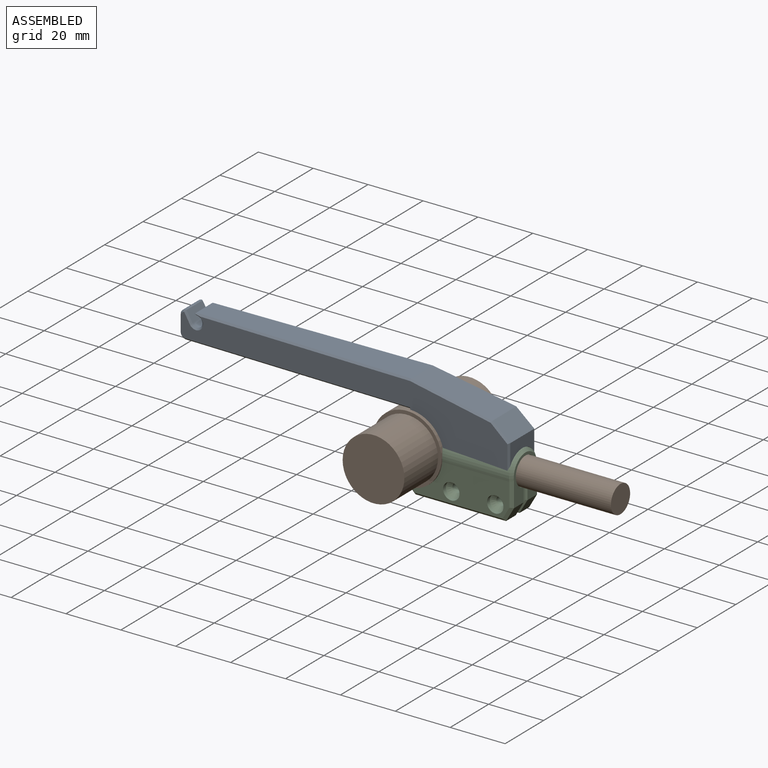
[diagram: assembled view]
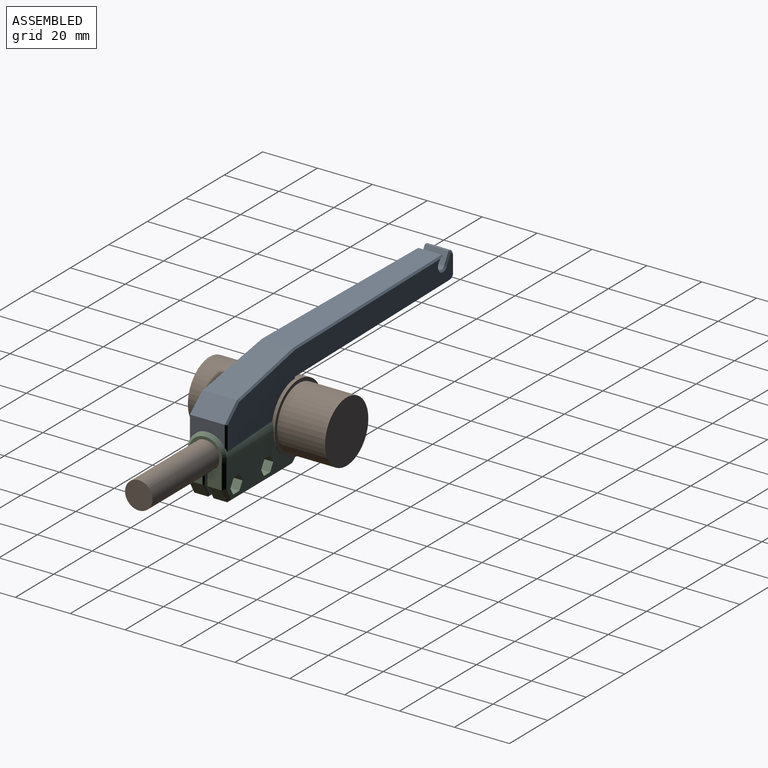
[diagram: assembled view, second angle]
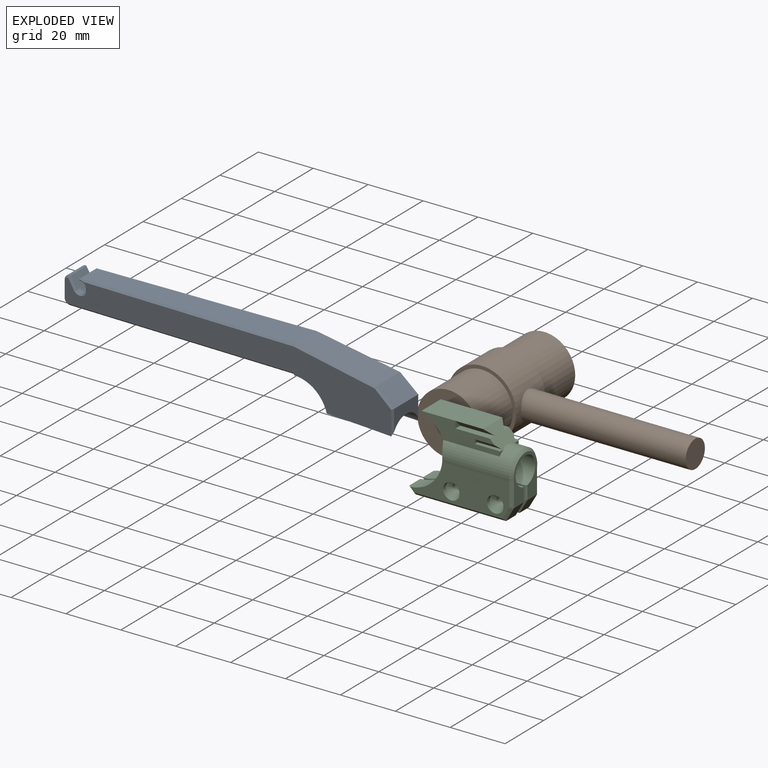
[diagram: exploded view]
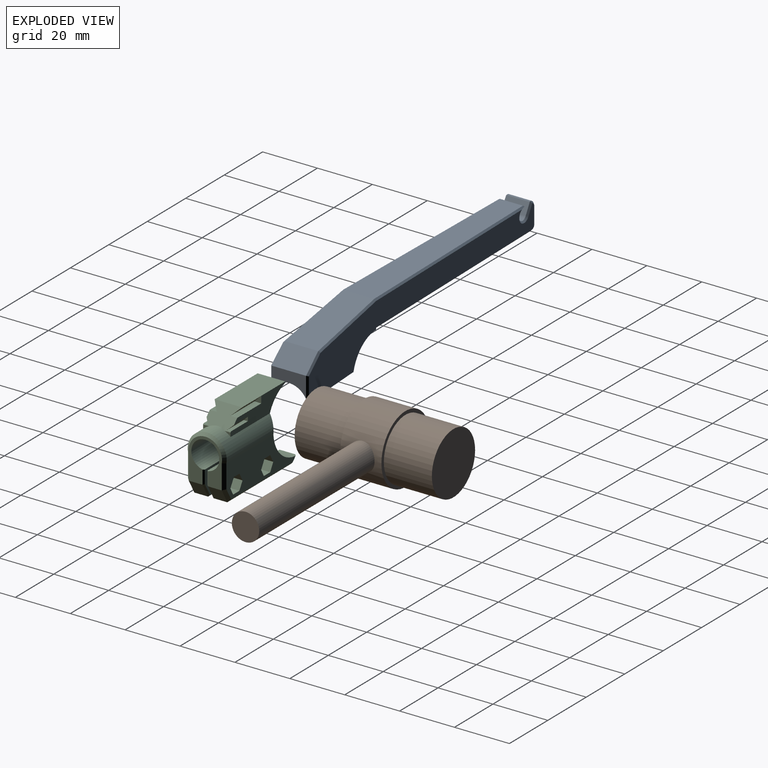
[diagram: exploded view, second angle]
ASSEMBLY  parts=3 mates=2
PART A: 67 faces, bbox 122.7x21.6x14.9 mm
  f0: plane 109.09x11.28mm, normal (0,1,0), area 989.1mm2, adj f6,f12,f17,f18,f26,f41,f52,f58
  f1: plane 2.22x1.52mm, normal (-1,0,0), area 1.5mm2, adj f6,f19,f58
  f2: plane 8.8x1.5mm, normal (0,1,0), area 13.2mm2, adj f3,f6,f55,f58
  f3: plane 8.8x1.5mm, normal (0,-0.71,0.71), area 17.1mm2, adj f2,f6,f55,f58
  f4: plane 8.8x1.5mm, normal (0,-0.71,-0.71), area 17.1mm2, adj f5,f12,f56,f58
  f5: plane 8.8x1.5mm, normal (0,1,0), area 13.2mm2, adj f4,f12,f56,f58
  f6: plane 32.09x7.52mm, normal (0,0,1), area 121.8mm2, adj f0,f1,f2,f3,f8,f9,f18,f19
  f7: plane 12.54x6.5mm, normal (0.66,-0.75,0), area 107mm2, adj f13,f30,f31,f32,f42,f43
  f8: plane 12.59x2.5mm, normal (0,1,0), area 31.5mm2, adj f6,f9,f21,f58
  f9: plane 12.59x2.5mm, normal (0,-0.71,0.71), area 40.1mm2, adj f6,f8,f21,f58
  f10: plane 12.59x2.5mm, normal (0,-0.71,-0.71), area 40.1mm2, adj f11,f12,f20,f58
  f11: plane 12.59x2.5mm, normal (0,1,0), area 31.5mm2, adj f10,f12,f20,f58
  f12: plane 32.09x7.52mm, normal (0,0,-1), area 121.8mm2, adj f0,f4,f5,f10,f11,f17,f19,f20
  f13: plane 12.53x7.65mm, normal (1,0,0), area 63.4mm2, adj f7,f19,f31,f42
  f14: plane 120.36x19.82mm, normal (-0.02,0,-1), area 1173.9mm2, adj f18,f19,f23,f42,f43,f44,f46,f47
  f15: plane 79.1x11.28mm, normal (0,-1,0), area 782.7mm2, adj f30,f33,f34,f44,f46,f65
  f16: plane 120.36x19.82mm, normal (-0.02,0,1), area 1174mm2, adj f17,f19,f22,f31,f32,f33,f34,f36
  f17: plane 1.14x0.6mm, normal (-1,0,0), area 0.2mm2, adj f0,f12,f16,f41,f54
  f18: plane 1.14x0.6mm, normal (-1,0,0), area 0.2mm2, adj f0,f6,f14,f52,f53
  f19: cylinder r=7.2mm len=25.08mm, axis (-1,0,0), area 190.3mm2, adj f1,f6,f12,f13,f14,f16,f22,f23
  f20: plane 2.5x2.5mm, normal (-1,0,0), area 3.1mm2, adj f10,f11,f12
  f21: plane 2.5x2.5mm, normal (-1,0,0), area 3.1mm2, adj f6,f8,f9
  f22: cylinder r=12.5mm len=11.98mm, axis (0,0,-1), area 18.9mm2, adj f12,f16,f19,f54
  f23: cylinder r=12.5mm len=11.98mm, axis (0,0,-1), area 18.9mm2, adj f6,f14,f19,f53
  f24: plane 8.33x5.9mm, normal (-1,0,0), area 49.1mm2, adj f25,f26,f39,f50
  f25: cylinder r=2mm len=8.37mm, axis (0,0,1), area 23.6mm2, adj f24,f38,f49,f66
  f26: cylinder r=2mm len=8.38mm, axis (0,0,-1), area 26.2mm2, adj f0,f24,f40,f51
  f27: plane 8.54x0.66mm, normal (-0.23,0.97,0), area 5.8mm2, adj f29,f35,f45,f64
  f28: plane 8.44x3.66mm, normal (0.86,-0.5,0), area 35.6mm2, adj f29,f37,f48,f66
  f29: cylinder r=2mm len=8.54mm, axis (0,0,-1), area 67.1mm2, adj f27,f28,f36,f47
  f30: plane 30x12.32mm, normal (0.19,-0.98,0), area 360.1mm2, adj f7,f15,f32,f33,f43,f44
  f31: plane 9.1x0.68mm, normal (0.7,0,0.71), area 7mm2, adj f7,f13,f16,f19,f32
  f32: plane 6.78x5.93mm, normal (0.45,-0.54,0.71), area 7.2mm2, adj f7,f16,f30,f31,f33
  f33: plane 30.06x6.21mm, normal (0.12,-0.7,0.71), area 25.9mm2, adj f15,f16,f30,f32,f34
  f34: plane 79.69x2.14mm, normal (-0.01,-0.71,0.71), area 67.1mm2, adj f15,f16,f33,f35,f36,f64,f65
  f35: plane 1.11x0.6mm, normal (-0.18,0.69,0.71), area 0.6mm2, adj f27,f34,f36,f64
  f36: bspline ~5.13x4.85mm, area 7.6mm2, adj f16,f29,f34,f35,f37
  f37: plane 4.19x2.65mm, normal (0.6,-0.36,0.71), area 3.7mm2, adj f16,f28,f36,f38,f66
  f38: bspline ~2.18x2.04mm, area 2.1mm2, adj f16,f25,f37,f39,f66
  f39: plane 5.9x0.6mm, normal (-0.71,0,0.7), area 5mm2, adj f16,f24,f38,f40
  f40: bspline ~2x2mm, area 2.3mm2, adj f16,f26,f39,f41
  f41: plane 83.01x2.05mm, normal (-0.01,0.71,0.71), area 70.4mm2, adj f0,f16,f17,f40
  f42: plane 9.1x0.68mm, normal (0.7,0,-0.71), area 7mm2, adj f7,f13,f14,f19,f43
  f43: plane 6.78x5.93mm, normal (0.45,-0.54,-0.71), area 7.2mm2, adj f7,f14,f30,f42,f44
  f44: plane 30.06x6.21mm, normal (0.12,-0.7,-0.71), area 25.9mm2, adj f14,f15,f30,f43,f46
  f45: plane 1.11x0.6mm, normal (-0.18,0.69,-0.71), area 0.6mm2, adj f27,f46,f47,f64
  f46: plane 79.69x2.14mm, normal (-0.01,-0.71,-0.71), area 67.1mm2, adj f14,f15,f44,f45,f47,f64,f65
  f47: bspline ~5.13x4.85mm, area 7.6mm2, adj f14,f29,f45,f46,f48
  f48: plane 4.19x2.65mm, normal (0.6,-0.36,-0.71), area 3.7mm2, adj f14,f28,f47,f49,f66
  f49: bspline ~2.18x2.04mm, area 2.1mm2, adj f14,f25,f48,f50,f66
  f50: plane 5.9x0.6mm, normal (-0.71,0,-0.7), area 5mm2, adj f14,f24,f49,f51
  f51: bspline ~2x2mm, area 2.3mm2, adj f14,f26,f50,f52
  f52: plane 83.01x2.05mm, normal (-0.01,0.71,-0.71), area 70.4mm2, adj f0,f14,f18,f51
  f53: plane 1.14x0.1mm, normal (-0.71,0.7,0), area 0.2mm2, adj f6,f14,f18,f23
  f54: plane 1.14x0.1mm, normal (-0.71,0.7,0), area 0.2mm2, adj f12,f16,f17,f22
  f55: plane 1.5x1.5mm, normal (-1,0,0), area 1.1mm2, adj f2,f3,f6
  f56: plane 1.5x1.5mm, normal (-1,0,0), area 1.1mm2, adj f4,f5,f12
  f57: plane 2.22x1.52mm, normal (-1,0,0), area 1.5mm2, adj f12,f19,f58
  f58: plane 11.4x7.2mm, normal (-0.71,0.71,0), area 71.2mm2, adj f0,f1,f2,f3,f4,f5,f6,f8
  f59: plane 28.5x2mm, normal (0,0,-1), area 57mm2, adj f0,f60,f62,f63
  f60: cylinder r=1.5mm len=3mm, axis (0,1,0), area 9.4mm2, adj f0,f59,f61,f63
  f61: plane 28.5x2mm, normal (0,0,1), area 57mm2, adj f0,f60,f62,f63
  f62: cylinder r=1.5mm len=3mm, axis (0,1,0), area 9.4mm2, adj f0,f59,f61,f63
  f63: plane 31.5x3mm, normal (0,1,0), area 92.6mm2, adj f59,f60,f61,f62
  f64: cylinder r=0.45mm len=9.2mm, axis (0,0,1), area 5.3mm2, adj f27,f34,f35,f45,f46,f65
  f65: cylinder r=0.45mm len=9.2mm, axis (0,0,1), area 5.4mm2, adj f15,f34,f46,f64
  f66: cylinder r=0.45mm len=8.51mm, axis (0,0,1), area 4.6mm2, adj f25,f28,f37,f38,f48,f49
PART B: 9 faces, bbox 85x25x50 mm
  f0: cylinder r=12.5mm len=25mm, axis (0,0,-1), area 1097.8mm2, adj f1,f2,f7
  f1: plane 25x25mm, normal (0,0,1), area 93.3mm2, adj f0,f5
  f2: plane 25x25mm, normal (0,0,-1), area 93.3mm2, adj f0,f4
  f3: plane 22.5x22.5mm, normal (0,0,-1), area 397.6mm2, adj f4
  f4: cylinder r=11.25mm len=22.5mm, axis (0,0,-1), area 1237mm2, adj f2,f3
  f5: cylinder r=11.25mm len=22.5mm, axis (0,0,-1), area 1237mm2, adj f1,f6
  f6: plane 22.5x22.5mm, normal (0,0,1), area 397.6mm2, adj f5
  f7: cylinder r=5mm len=61.04mm, axis (-1,0,0), area 1901.2mm2, adj f0,f8
  f8: plane 10x10mm, normal (1,0,0), area 78.5mm2, adj f7
PART C: 76 faces, bbox 37.9x27.5x14.2 mm
  f0: plane 2.14x1.46mm, normal (1,0,0), area 1.4mm2, adj f11,f24,f66
  f1: plane 22.39x10mm, normal (0,-1,0), area 223.9mm2, adj f4,f5,f11,f21,f32,f66
  f2: plane 16.1x12.2mm, normal (1,0,0), area 87mm2, adj f18,f23,f27,f56,f57,f61,f62,f67
  f3: plane 12.5x2.5mm, normal (0,-1,0), area 31.2mm2, adj f4,f11,f30,f66
  f4: plane 12.5x2.5mm, normal (0,0.71,0.71), area 39.8mm2, adj f1,f3,f30,f66
  f5: plane 12.5x2.5mm, normal (0,0.71,-0.71), area 39.8mm2, adj f1,f6,f31,f66
  f6: plane 12.5x2.5mm, normal (0,-1,0), area 31.3mm2, adj f5,f21,f31,f66
  f7: plane 8.7x1.5mm, normal (0,0.71,-0.71), area 16.9mm2, adj f8,f21,f63,f66
  f8: plane 8.7x1.5mm, normal (0,-1,0), area 13.1mm2, adj f7,f21,f63,f66
  f9: plane 8.7x1.5mm, normal (0,0.71,0.71), area 16.9mm2, adj f10,f11,f64,f66
  f10: plane 8.7x1.5mm, normal (0,-1,0), area 13.1mm2, adj f9,f11,f64,f66
  f11: plane 28.39x7.46mm, normal (0,0,1), area 117.8mm2, adj f0,f1,f3,f9,f10,f20,f24,f30
  f12: cylinder r=1.6mm len=3.6mm, axis (0,0,-1), area 36.2mm2, adj f33,f52
  f13: cylinder r=1.6mm len=3.6mm, axis (0,0,-1), area 36.2mm2, adj f33,f51
  f14: cylinder r=1.6mm len=3.25mm, axis (0,0,-1), area 32.7mm2, adj f34,f48
  f15: cylinder r=1.6mm len=3.25mm, axis (0,0,-1), area 32.7mm2, adj f34,f41
  f16: plane 33x5mm, normal (0,1,0), area 165mm2, adj f27,f29,f59,f74
  f17: plane 5.71x0.5mm, normal (-1,0,0), area 2.7mm2, adj f19,f20,f53,f71
  f18: plane 5x5mm, normal (0.87,0.5,0), area 28.9mm2, adj f2,f28,f55,f69
  f19: plane 5x2mm, normal (-0.71,0.71,0), area 14.1mm2, adj f17,f28,f53,f71
  f20: cylinder r=12.5mm len=24.5mm, axis (0,0,-1), area 352.2mm2, adj f11,f17,f21,f22,f23,f24,f25,f26
  f21: plane 28.39x7.46mm, normal (0,0,-1), area 117.8mm2, adj f1,f6,f7,f8,f20,f24,f31,f32
  f22: plane 5.71x0.5mm, normal (-1,0,0), area 2.7mm2, adj f20,f29,f58,f75
  f23: cylinder r=5.1mm len=26.48mm, axis (1,0,0), area 804mm2, adj f2,f20,f33,f34,f68,f72
  f24: cylinder r=7.1mm len=25.45mm, axis (1,0,0), area 393.7mm2, adj f0,f11,f20,f21,f25,f26,f57,f62
  f25: plane 36x12.81mm, normal (0,0,-1), area 300.4mm2, adj f20,f24,f49,f50,f58,f59,f60,f61
  f26: plane 36x12.81mm, normal (0,0,1), area 302.1mm2, adj f20,f24,f35,f36,f37,f38,f39,f40
  f27: plane 5x5mm, normal (0.87,0.5,0), area 28.9mm2, adj f2,f16,f60,f73
  f28: plane 33x5mm, normal (0,1,0), area 165mm2, adj f18,f19,f54,f70
  f29: plane 5x2mm, normal (-0.71,0.71,0), area 14.1mm2, adj f16,f22,f58,f75
  f30: plane 2.5x2.5mm, normal (1,0,0), area 3.1mm2, adj f3,f4,f11
  f31: plane 2.5x2.5mm, normal (1,0,0), area 3.1mm2, adj f5,f6,f21
  f32: plane 10x0.5mm, normal (-1,0,0), area 5mm2, adj f1,f11,f20,f21
  f33: plane 37.18x9.42mm, normal (0,0,1), area 266.6mm2, adj f12,f13,f20,f23,f72,f73,f74,f75
  f34: plane 37.18x9.42mm, normal (0,0,-1), area 266.6mm2, adj f14,f15,f20,f23,f68,f69,f70,f71
  f35: plane 3.25x3.25mm, normal (0,1,0), area 10.6mm2, adj f26,f36,f40,f41
  f36: plane 3.25x2.81mm, normal (-0.87,0.5,0), area 10.6mm2, adj f26,f35,f37,f41
  f37: plane 3.25x2.81mm, normal (-0.87,-0.5,0), area 10.6mm2, adj f26,f36,f38,f41
  f38: plane 3.25x3.25mm, normal (0,-1,0), area 10.6mm2, adj f26,f37,f39,f41
  f39: plane 3.25x2.81mm, normal (0.87,-0.5,0), area 10.6mm2, adj f26,f38,f40,f41
  f40: plane 3.25x2.81mm, normal (0.87,0.5,0), area 10.6mm2, adj f26,f35,f39,f41
  f41: plane 6.5x5.63mm, normal (0,0,1), area 19.4mm2, adj f15,f35,f36,f37,f38,f39,f40
  f42: plane 3.25x3.25mm, normal (0,1,0), area 10.6mm2, adj f26,f43,f47,f48
  f43: plane 3.25x2.81mm, normal (-0.87,0.5,0), area 10.6mm2, adj f26,f42,f44,f48
  f44: plane 3.25x2.81mm, normal (-0.87,-0.5,0), area 10.6mm2, adj f26,f43,f45,f48
  f45: plane 3.25x3.25mm, normal (0,-1,0), area 10.6mm2, adj f26,f44,f46,f48
  f46: plane 3.25x2.81mm, normal (0.87,-0.5,0), area 10.6mm2, adj f26,f45,f47,f48
  f47: plane 3.25x2.81mm, normal (0.87,0.5,0), area 10.6mm2, adj f26,f42,f46,f48
  f48: plane 6.5x5.63mm, normal (0,0,1), area 19.4mm2, adj f14,f42,f43,f44,f45,f46,f47
  f49: cylinder r=3mm len=6mm, axis (0,0,-1), area 28.3mm2, adj f25,f51
  f50: cylinder r=3mm len=6mm, axis (0,0,-1), area 28.3mm2, adj f25,f52
  f51: cone r=3mm half-angle=45deg, axis (0,0,-1), area 28.6mm2, adj f13,f49
  f52: cone r=3mm half-angle=45deg, axis (0,0,-1), area 28.6mm2, adj f12,f50
  f53: plane 2.54x2.42mm, normal (-0.5,0.5,0.71), area 3.8mm2, adj f17,f19,f20,f26,f54
  f54: plane 33x1mm, normal (0,0.71,0.71), area 46mm2, adj f26,f28,f53,f55
  f55: plane 5.27x3.46mm, normal (0.61,0.35,0.71), area 7.6mm2, adj f18,f26,f54,f56
  f56: plane 8.9x1mm, normal (0.71,0,0.71), area 12.3mm2, adj f2,f26,f55,f57
  f57: cone r=6.1mm half-angle=45deg, axis (-1,0,0), area 9.3mm2, adj f2,f24,f56,f67
  f58: plane 2.54x2.42mm, normal (-0.5,0.5,-0.71), area 3.8mm2, adj f20,f22,f25,f29,f59
  f59: plane 33x1mm, normal (0,0.71,-0.71), area 46mm2, adj f16,f25,f58,f60
  f60: plane 5.27x3.46mm, normal (0.61,0.35,-0.71), area 7.6mm2, adj f25,f27,f59,f61
  f61: plane 8.9x1mm, normal (0.71,0,-0.71), area 12.3mm2, adj f2,f25,f60,f62
  f62: cone r=6.1mm half-angle=45deg, axis (-1,0,0), area 9.3mm2, adj f2,f24,f61,f67
  f63: plane 1.5x1.5mm, normal (1,0,0), area 1.1mm2, adj f7,f8,f21
  f64: plane 1.5x1.5mm, normal (1,0,0), area 1.1mm2, adj f9,f10,f11
  f65: plane 2.14x1.46mm, normal (1,0,0), area 1.4mm2, adj f21,f24,f66
  f66: plane 10x6mm, normal (0.71,-0.71,0), area 69.6mm2, adj f0,f1,f3,f4,f5,f6,f7,f8
  f67: cone r=6.1mm half-angle=45deg, axis (-1,0,0), area 14mm2, adj f2,f24,f57,f62
  f68: plane 5x0.5mm, normal (0.71,0,-0.71), area 3.5mm2, adj f2,f23,f34,f69
  f69: plane 5.13x3.18mm, normal (0.61,0.35,-0.71), area 3.9mm2, adj f18,f34,f68,f70
  f70: plane 33x0.5mm, normal (0,0.71,-0.71), area 23.2mm2, adj f28,f34,f69,f71
  f71: plane 2.5x2.21mm, normal (-0.5,0.5,-0.71), area 2.1mm2, adj f17,f19,f20,f34,f70
  f72: plane 5x0.5mm, normal (0.71,0,0.71), area 3.5mm2, adj f2,f23,f33,f73
  f73: plane 5.13x3.18mm, normal (0.61,0.35,0.71), area 3.9mm2, adj f27,f33,f72,f74
  f74: plane 33x0.5mm, normal (0,0.71,0.71), area 23.2mm2, adj f16,f33,f73,f75
  f75: plane 2.5x2.21mm, normal (-0.5,0.5,0.71), area 2.1mm2, adj f20,f22,f29,f33,f74
PLACE A rot(axis=(-1,0,0),90deg) t=(-121.59,50.46,29.75)mm
PLACE B rot(axis=(1,0,0),90deg) t=(-121.79,50.46,29.75)mm
PLACE C rot(axis=(-1,0,0),90deg) t=(-121.79,50.46,29.75)mm
MATE slider A.f19 <-> C.f24  axis (-1,0,0) through (-97.71,50.46,29.75)mm
MATE slider C.f20 <-> B.f0  axis (0,-1,0) through (-121.79,50.46,29.75)mm
